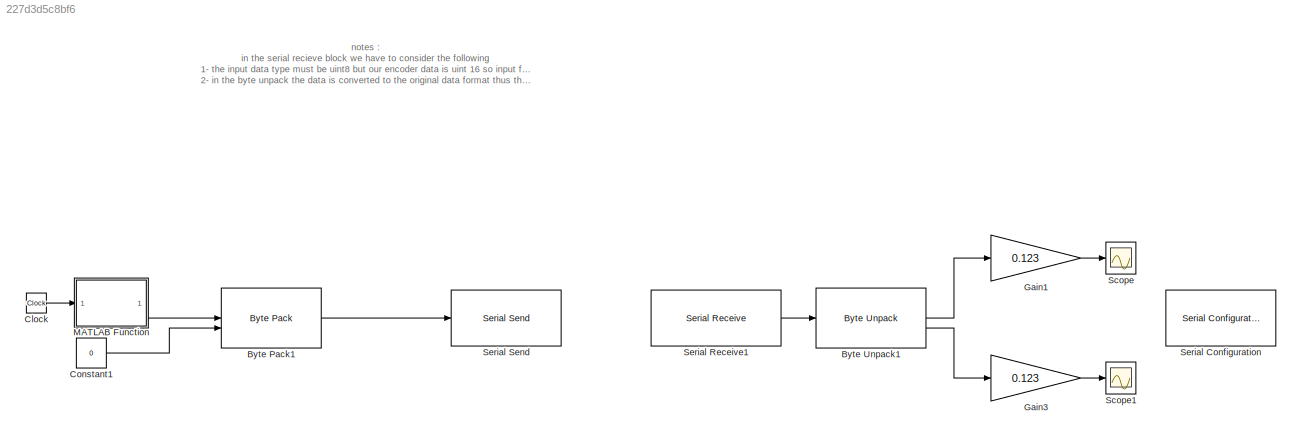
MODEL slx_227d3d5c8bf6
KIND model
CONFIG AbsTol = auto
CONFIG EnableMultiTasking = off
CONFIG FixedStep = auto
CONFIG MaxStep = auto
CONFIG MinStep = auto
CONFIG RelTol = 1e-3
CONFIG SampleTimeConstraint = Unconstrained
CONFIG SolverName = ode5
CONFIG StartTime = 0.0
CONFIG StopTime = inf
BLOCK [Reference] Byte Pack1  REF=svdutilitieslib/Byte Pack
  SourceBlock = svdutilitieslib/Byte Pack
  SourceType = Byte pack
BLOCK [Reference] Byte Unpack1  REF=etargetslib/Byte Unpack
  LibrarySourceBlock = embeddedtargetslib/Host Communication/Byte Unpack
  SourceBlock = etargetslib/Byte Unpack
  SourceType = Byte Unpack
BLOCK [Clock] Clock
  Decimation = 300
BLOCK [Constant] Constant1
  OutDataTypeStr = uint8
  Value = 0
BLOCK [Gain] Gain1
  Gain = 0.123
  OutDataTypeStr = int32
BLOCK [Gain] Gain3
  Gain = 0.123
  OutDataTypeStr = int32
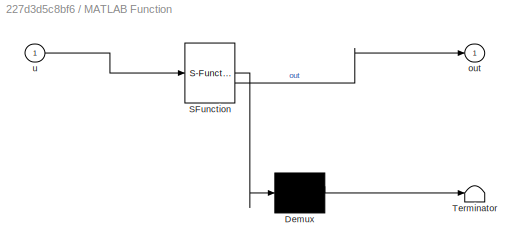
BLOCK [SubSystem] MATLAB Function
  ErrorFcn = Stateflow.Translate.translate
  LibrarySourceBlock = simulink/User-Defined\nFunctions/MATLAB Function
  PermitHierarchicalResolution = ExplicitOnly
  SFBlockType = MATLAB Function
  TreatAsAtomicUnit = on
BLOCK [Demux] MATLAB Function/ Demux 
  Outputs = 1
BLOCK [S-Function] MATLAB Function/ SFunction 
  EnableBusSupport = on
  FunctionName = sf_sfun
  PortCounts = [1 2]
  SFcnIsStateOwnerBlock = off
  SFunctionDeploymentMode = off
  Tag = Stateflow S-Function 2
BLOCK [Terminator] MATLAB Function/ Terminator 
BLOCK [Outport] MATLAB Function/out
BLOCK [Inport] MATLAB Function/u
BLOCK [Scope] Scope
  Floating = off
  NumInputPorts = 1
  ScopeSpecificationString = Simulink.scopes.TimeScopeBlockCfg('CurrentConfiguration', extmgr.ConfigurationSet(extmgr.Configuration('Core','General UI',true),extmgr.Configuration('Core','Source UI',true),extmgr.Configuration('Sources','WiredSimulink',true),extmgr.Configuration('Visuals','Time Domain',true,'SerializedDisplays',{struct('MinYLimReal','-1.00000','MaxYLimReal','1.00000','YLabelReal','','MinYLimMag','0.00000','MaxY...<+1350ch>
BLOCK [Scope] Scope1
  Floating = off
  NumInputPorts = 1
  ScopeSpecificationString = Simulink.scopes.TimeScopeBlockCfg('CurrentConfiguration', extmgr.ConfigurationSet(extmgr.Configuration('Core','General UI',true),extmgr.Configuration('Core','Source UI',true),extmgr.Configuration('Sources','WiredSimulink',true,'DataLoggingVariableName','ScopeData1'),extmgr.Configuration('Visuals','Time Domain',true,'SerializedDisplays',{struct('MinYLimReal','-25.5','MaxYLimReal','229.5','YLabelRea...<+1375ch>
BLOCK [Reference] Serial Configuration  REF=instrumentseriallib/Serial Configuration
  LibrarySourceBlock = embeddedtargetslib/Host Communication/Serial Configuration
  Priority = -200000
  SourceBlock = instrumentseriallib/Serial Configuration
  SourceType = system.SerialConfiguration
BLOCK [Reference] Serial Receive1  REF=instrumentseriallib/Serial Receive
  LibrarySourceBlock = instrumentlib/Serial Receive
  Priority = 1
  SourceBlock = instrumentseriallib/Serial Receive
  SourceType = system.SerialReceive
BLOCK [Reference] Serial Send  REF=instrumentseriallib/Serial Send
  LibrarySourceBlock = embeddedtargetslib/Host Communication/Serial Send
  Priority = 1
  SourceBlock = instrumentseriallib/Serial Send
  SourceType = system.SerialSend
ANNOTATION (root): notes : in the serial recieve block we have to consider the following 1- the input data type must be uint8 but our encoder data is uint 16 so input format is column major and the data size is [1 2] 2- in the byte unpack the data is converted to the original data format thus the output port data type is uint16
LINE Byte Pack1:1 -> Serial Send:1
LINE Byte Unpack1:1 -> Gain1:1
LINE Byte Unpack1:2 -> Gain3:1
LINE Clock:1 -> MATLAB Function:1
LINE Constant1:1 -> Byte Pack1:2
LINE Gain1:1 -> Scope:1
LINE Gain3:1 -> Scope1:1
LINE MATLAB Function:1 -> Byte Pack1:1
LINE Serial Receive1:1 -> Byte Unpack1:1
CHART MATLAB Function states=1 transitions=1
  STATE_LABEL 'eML_blk_kernel()'
  STATE_LABEL 'SCRIPT:\nfunction out = fcn(u)\n    if u < 5\n        y = 50;\n    elseif u < 7\n        y = 0;\n    elseif u < 10\n        y = 45;\n    elseif u < 12 \n        y = 0;\n    elseif u < 14\n        y = 60;\n    elseif u < 16\n        y = 65;\n    else\n        y = 0;\n    end\nout =uint8(y) ;\n'
CHART  states=0 transitions=0
